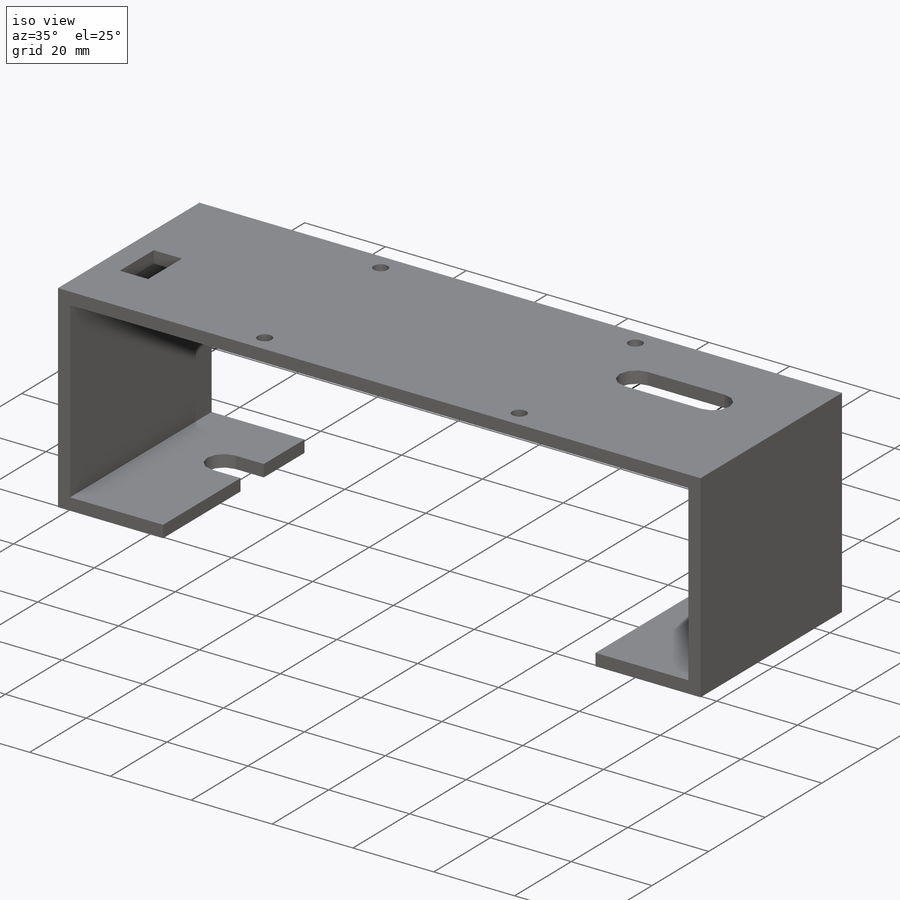
[diagram: iso view]
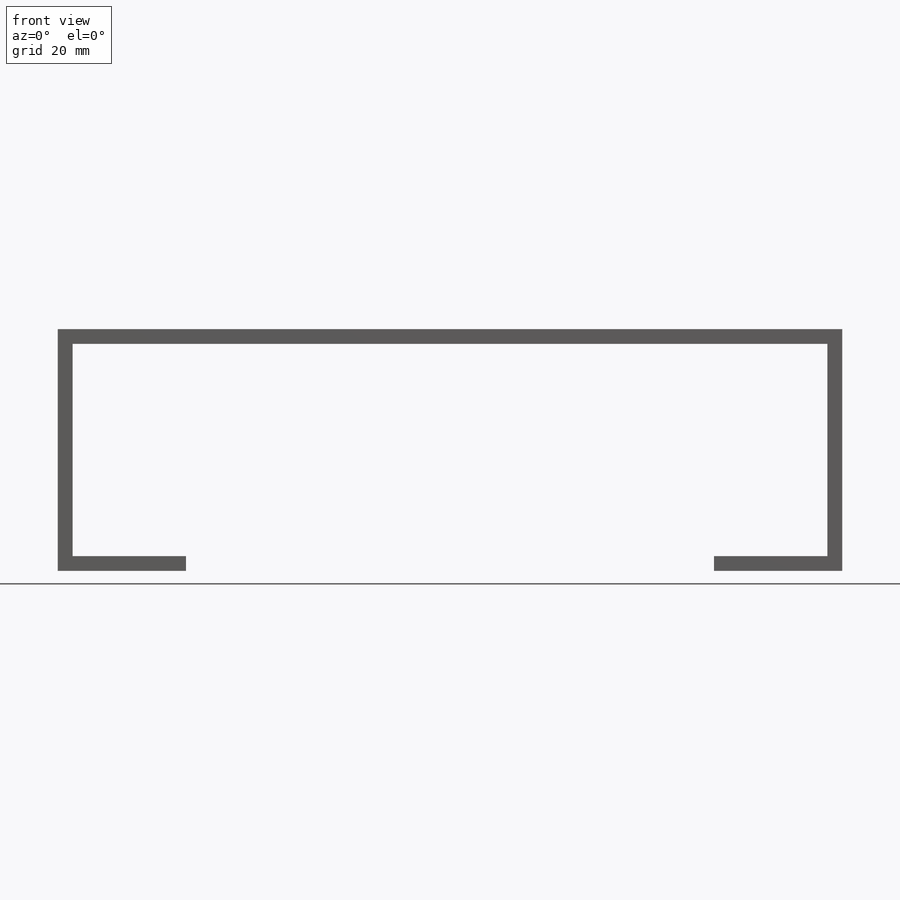
[diagram: front view]
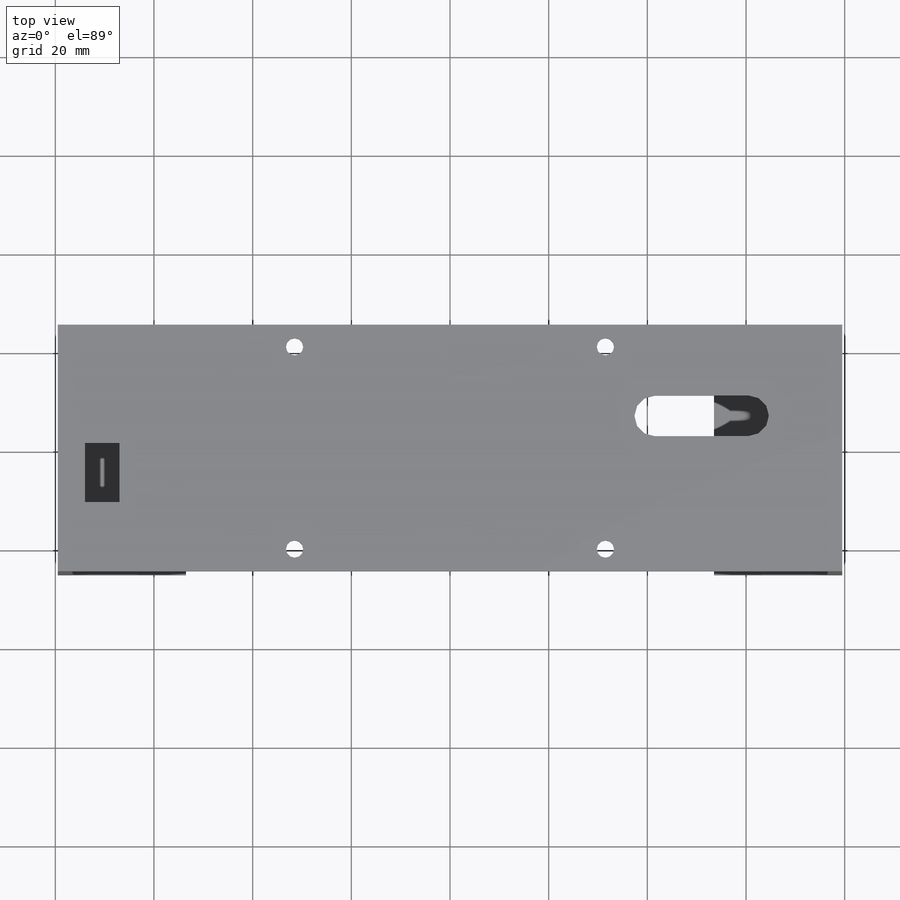
[diagram: top view]
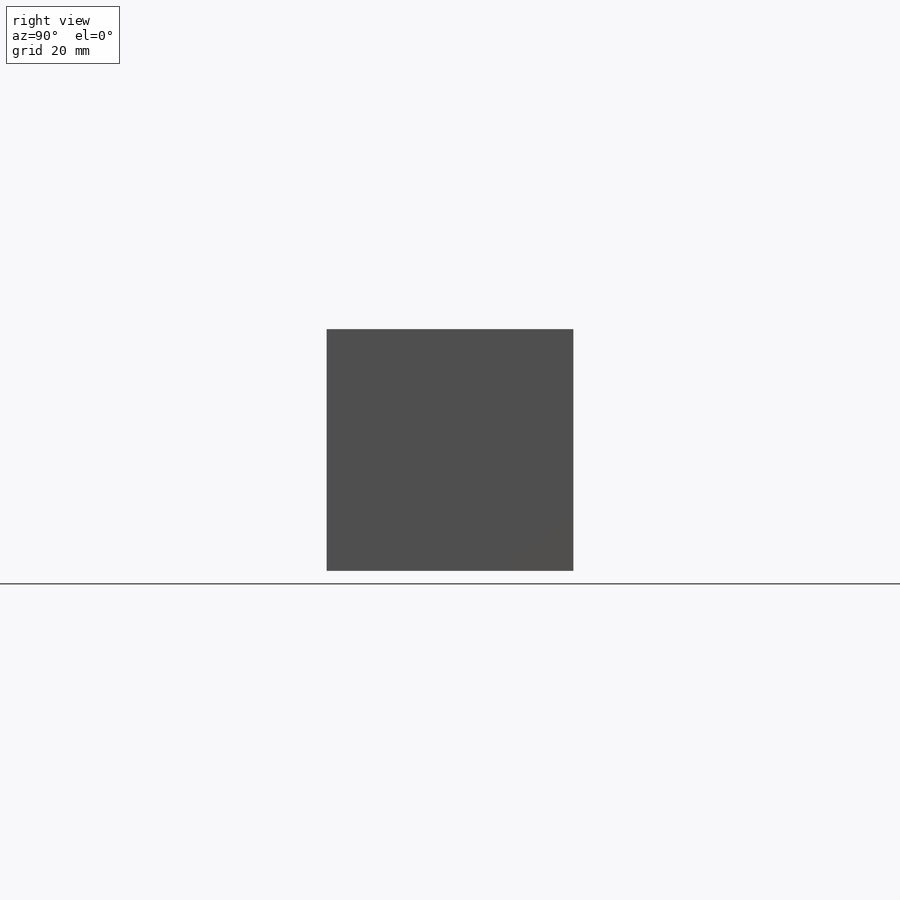
[diagram: right view]
SOLIDWORKS PART (.sldprt)
format: sldprt  version: not decoded by parser v0  size: 283,648 bytes
history: native  units: mm
features: sketch x7, cut_extrude x5, extrude x2, material x1, mirror x1 (+13 scaffold rows collapsed)
feature tree (29):
  scaffold x13  (default folders/planes/origin — collapsed)
  material  "Material <not specified>"
  sketch  "Sketch1"  dims[D1=3.5mm D2=63.0mm D3=41.0mm D4=14.0mm D5=37.0mm]
  sketch  "Sketch2"  dims[D1=50.0mm D2=105.0mm D3=24.0mm D4=3.0mm]
  extrude  "Boss-Extrude1"  Depth=3mm
  sketch  "Sketch4"  dims[D1=43.0mm D2=23.0mm]
  extrude  "Boss-Extrude2"  [1 undecoded]
  mirror  "Mirror1"
  sketch  "Sketch5"  dims[D1=4.125mm D2=7.0mm D3=18.5mm]
  cut_extrude  "Cut-Extrude1"  [1 undecoded]
  sketch  "Sketch6"  dims[c1.D2=4.125mm c1.D3=4.125mm c1.D1=18.5mm c2.D2=7.0mm c2.D3=12.0mm c2.D1=18.5mm]
  cut_extrude  "Cut-Extrude2"  [1 undecoded]
  sketch  "Sketch7"  dims[c1.D1=2.5mm c1.D2=6.0mm c1.D3=2.5mm c2.D1=7.0mm c2.D2=36.0mm c2.D4=24.0mm c3.D2=36.0mm c3.D3=24.0mm c3.D4=2.5mm]
  cut_extrude  "Cut-Extrude3"  [1 undecoded]
  sketch  "Sketch8"  dims[c1.D1=2.5mm c1.D2=24.0mm c2.D1=2.5mm c2.D2=24.0mm]
  cut_extrude  "Cut-Extrude5"  [1 undecoded]
  cut_extrude  "Cut-Extrude7"  [1 undecoded]
decode coverage: 8 of 15 modeling features carry decoded parameters
note: 6 parameter values undecoded
summary: no parameter record found for 6 features
note: suppression state not decoded; provenance and decode notes live in map.json
